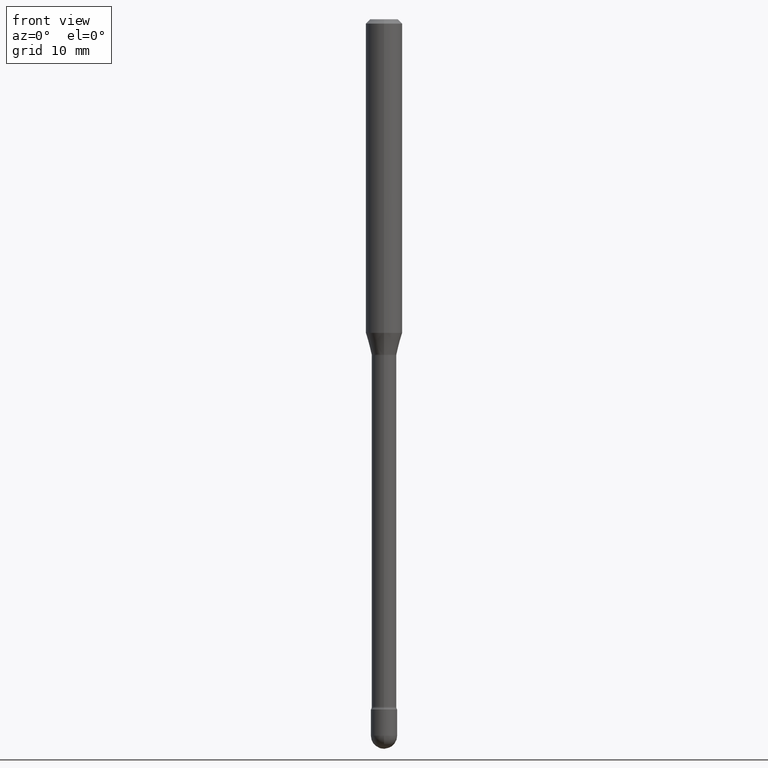
[diagram: clean part render]
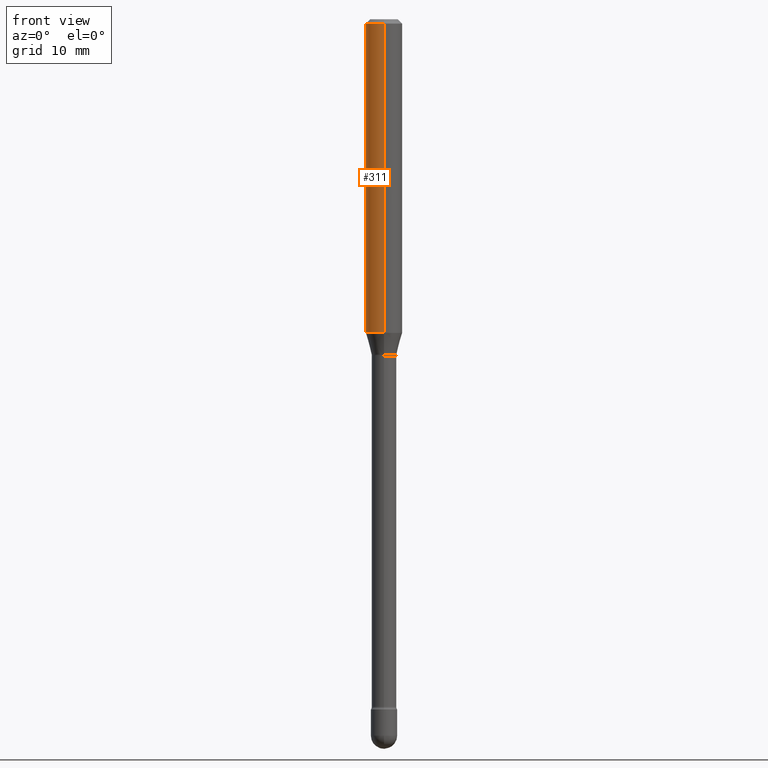
[diagram: same view with one face highlighted and labeled with its STEP entity id]
A machine part, front view. The second image highlights one B-rep face of the part: STEP entity #311.
In plain terms, the highlighted cylindrical surface (edge-blend (fillet) strip) has radius 1.5875 mm, axis along (-0, 0, 1).
Its self-contained STEP definition (entity closure, byte-faithful):
#8 = DIRECTION ( 'NONE',  ( -6.982962677686265922E-15, -1.000000000000000000, 3.491385198703219362E-15 ) ) ;
#41 = VECTOR ( 'NONE', #51, 39.37007874015748143 ) ;
#48 = CARTESIAN_POINT ( 'NONE',  ( -1.169113584055446105E-44, 1.669184350826100908E-30, 4.780733988912460139E-16 ) ) ;
#51 = DIRECTION ( 'NONE',  ( -2.445535940486029483E-29, 3.491385198703219756E-15, 1.000000000000000000 ) ) ;
#55 = LINE ( 'NONE', #278, #41 ) ;
#68 = CARTESIAN_POINT ( 'NONE',  ( -4.364351673553916201E-16, -0.06250000000000000000, 6.962849738101973226E-16 ) ) ;
#77 = VERTEX_POINT ( 'NONE', #453 ) ;
#84 = EDGE_LOOP ( 'NONE', ( #163, #513, #408, #90 ) ) ;
#90 = ORIENTED_EDGE ( 'NONE', *, *, #466, .F. ) ;
#98 = EDGE_CURVE ( 'NONE', #77, #228, #137, .T. ) ;
#103 = EDGE_CURVE ( 'NONE', #77, #422, #55, .T. ) ;
#137 = CIRCLE ( 'NONE', #295, 0.06250000000000000000 ) ;
#159 = CARTESIAN_POINT ( 'NONE',  ( -4.364351673553912750E-16, -0.06250000000000005551, -0.01499999999999986587 ) ) ;
#163 = ORIENTED_EDGE ( 'NONE', *, *, #103, .F. ) ;
#186 = DIRECTION ( 'NONE',  ( -2.445535940486029483E-29, 3.491385198703219756E-15, 1.000000000000000000 ) ) ;
#213 = VERTEX_POINT ( 'NONE', #159 ) ;
#221 = EDGE_CURVE ( 'NONE', #228, #213, #467, .T. ) ;
#225 = DIRECTION ( 'NONE',  ( -2.445535940486029483E-29, 3.491385198703219756E-15, 1.000000000000000000 ) ) ;
#228 = VERTEX_POINT ( 'NONE', #548 ) ;
#249 = CARTESIAN_POINT ( 'NONE',  ( 3.668303910729064596E-31, -5.237077798054858847E-17, -0.01500000000000008271 ) ) ;
#274 = FACE_OUTER_BOUND ( 'NONE', #84, .T. ) ;
#277 = AXIS2_PLACEMENT_3D ( 'NONE', #249, #296, #338 ) ;
#278 = CARTESIAN_POINT ( 'NONE',  ( 4.440892098500625669E-16, 0.06250000000000000000, 2.598618239722948531E-16 ) ) ;
#283 = CARTESIAN_POINT ( 'NONE',  ( 4.440892098500889444E-16, 0.06249999999999995143, -0.01500000000000030129 ) ) ;
#292 = AXIS2_PLACEMENT_3D ( 'NONE', #48, #225, #8 ) ;
#295 = AXIS2_PLACEMENT_3D ( 'NONE', #539, #186, #317 ) ;
#296 = DIRECTION ( 'NONE',  ( -2.445535940486029483E-29, 3.491385198703219756E-15, 1.000000000000000000 ) ) ;
#311 = ADVANCED_FACE ( 'NONE', ( #274 ), #527, .T. ) ;
#312 = VECTOR ( 'NONE', #339, 39.37007874015748143 ) ;
#317 = DIRECTION ( 'NONE',  ( -6.982962677686265922E-15, -1.000000000000000000, 4.370956789862821150E-15 ) ) ;
#338 = DIRECTION ( 'NONE',  ( -6.982962677686265922E-15, -1.000000000000000000, 3.483106191921935554E-15 ) ) ;
#339 = DIRECTION ( 'NONE',  ( -2.445535940486029483E-29, 3.491385198703219756E-15, 1.000000000000000000 ) ) ;
#398 = CIRCLE ( 'NONE', #277, 0.06250000000000000000 ) ;
#408 = ORIENTED_EDGE ( 'NONE', *, *, #221, .T. ) ;
#422 = VERTEX_POINT ( 'NONE', #283 ) ;
#453 = CARTESIAN_POINT ( 'NONE',  ( 4.440892098500887472E-16, 0.06249999999999624606, -1.074612573687109052 ) ) ;
#466 = EDGE_CURVE ( 'NONE', #422, #213, #398, .T. ) ;
#467 = LINE ( 'NONE', #68, #312 ) ;
#513 = ORIENTED_EDGE ( 'NONE', *, *, #98, .T. ) ;
#527 = CYLINDRICAL_SURFACE ( 'NONE', #292, 0.06250000000000000000 ) ;
#539 = CARTESIAN_POINT ( 'NONE',  ( 2.628003671050016202E-29, -3.751886434111544778E-15, -1.074612573687108830 ) ) ;
#548 = CARTESIAN_POINT ( 'NONE',  ( -4.364351673553653412E-16, -0.06250000000000376088, -1.074612573687108608 ) ) ;